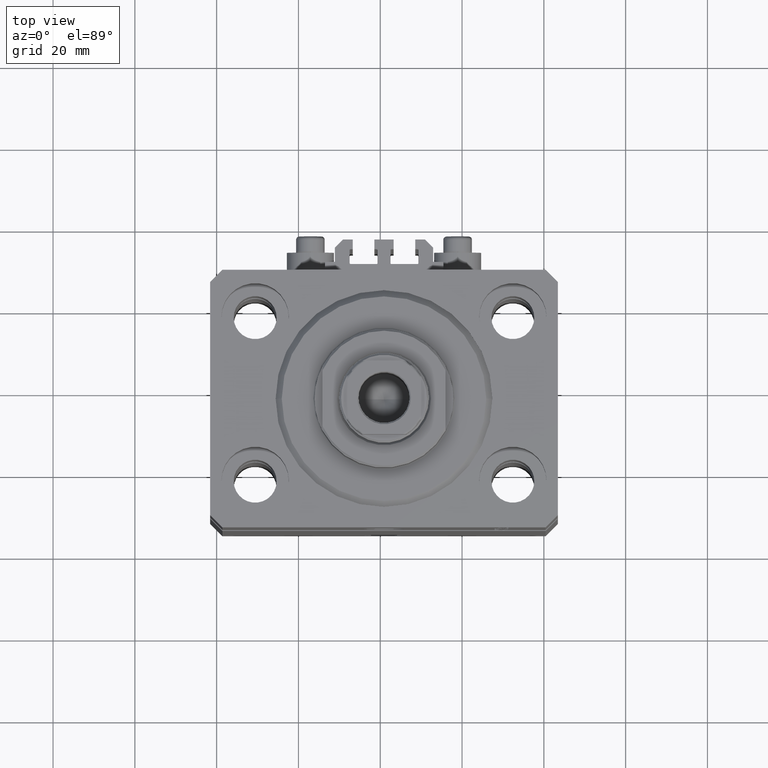
[diagram: clean part render]
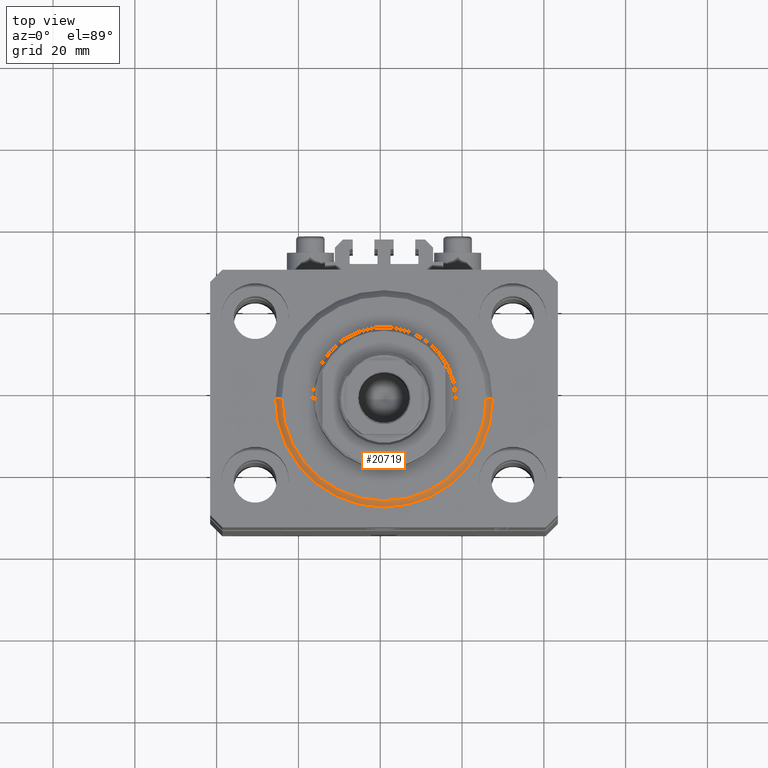
[diagram: same view with one face highlighted and labeled with its STEP entity id]
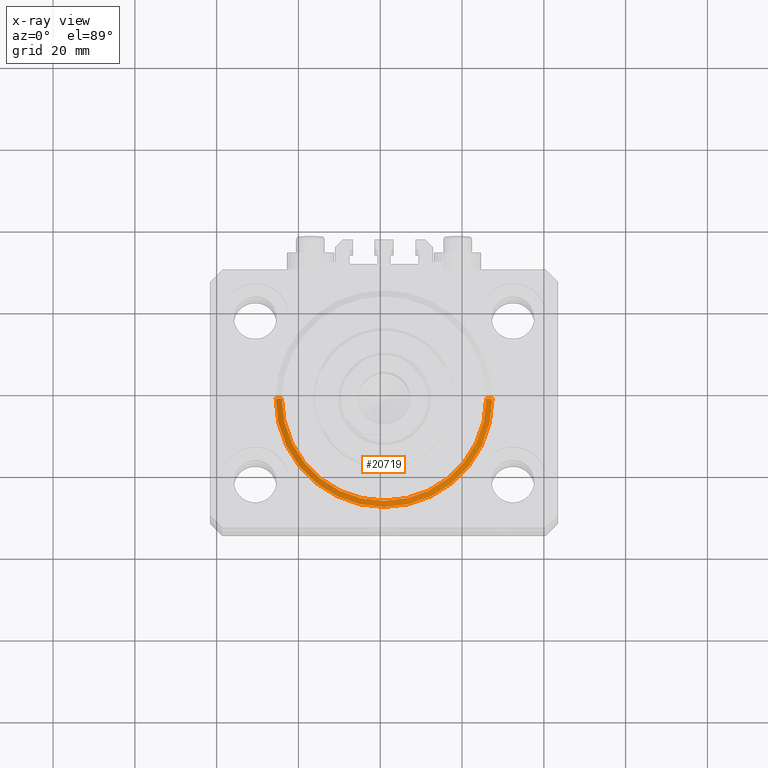
[diagram: x-ray of the same camera — body ghosted, the highlighted face saturated]
A machine part, top view. The second image highlights one B-rep face of the part: STEP entity #20719.
The next image is the same camera in x-ray: the body ghosted, the highlighted face saturated — about 0% of this face is hidden behind the body in this view.
In plain terms, the highlighted conical surface has half-angle 45 deg.
Its self-contained STEP definition (entity closure, byte-faithful):
#2080 = EDGE_CURVE ( 'NONE', #45519, #2197, #12496, .T. ) ;
#2197 = VERTEX_POINT ( 'NONE', #36111 ) ;
#2914 = DIRECTION ( 'NONE',  ( 1.000000000000000000, 0.000000000000000000, 0.000000000000000000 ) ) ;
#3144 = EDGE_LOOP ( 'NONE', ( #40403, #42891, #47349, #12711 ) ) ;
#3171 = VECTOR ( 'NONE', #45169, 1000.000000000000000 ) ;
#3200 = AXIS2_PLACEMENT_3D ( 'NONE', #6222, #35582, #17295 ) ;
#5985 = FACE_OUTER_BOUND ( 'NONE', #3144, .T. ) ;
#6222 = CARTESIAN_POINT ( 'NONE',  ( 0.000000000000000000, 0.000000000000000000, 1.500000000000046407 ) ) ;
#7405 = EDGE_CURVE ( 'NONE', #15667, #13560, #31011, .T. ) ;
#8188 = DIRECTION ( 'NONE',  ( -0.7071067811865491270, 8.659560562354952580E-17, 0.7071067811865459074 ) ) ;
#10697 = DIRECTION ( 'NONE',  ( 1.000000000000000000, 0.000000000000000000, 0.000000000000000000 ) ) ;
#12496 = CIRCLE ( 'NONE', #20190, 24.99999999999995026 ) ;
#12711 = ORIENTED_EDGE ( 'NONE', *, *, #7405, .F. ) ;
#13560 = VERTEX_POINT ( 'NONE', #40832 ) ;
#13606 = CARTESIAN_POINT ( 'NONE',  ( 0.000000000000000000, 0.000000000000000000, 1.500000000000046407 ) ) ;
#15496 = CONICAL_SURFACE ( 'NONE', #3200, 26.50000000000000355, 0.7853981633974506105 ) ;
#15667 = VERTEX_POINT ( 'NONE', #43108 ) ;
#16824 = EDGE_CURVE ( 'NONE', #45519, #13560, #20383, .T. ) ;
#17295 = DIRECTION ( 'NONE',  ( 1.000000000000000000, 0.000000000000000000, 0.000000000000000000 ) ) ;
#19430 = CARTESIAN_POINT ( 'NONE',  ( 26.50000000000000355, 0.000000000000000000, 1.500000000000046407 ) ) ;
#20190 = AXIS2_PLACEMENT_3D ( 'NONE', #46702, #20966, #2914 ) ;
#20383 = LINE ( 'NONE', #19430, #3171 ) ;
#20719 = ADVANCED_FACE ( 'NONE', ( #5985 ), #15496, .T. ) ;
#20966 = DIRECTION ( 'NONE',  ( -0.000000000000000000, -0.000000000000000000, -1.000000000000000000 ) ) ;
#21528 = DIRECTION ( 'NONE',  ( -0.000000000000000000, -0.000000000000000000, 1.000000000000000000 ) ) ;
#24095 = AXIS2_PLACEMENT_3D ( 'NONE', #13606, #21528, #10697 ) ;
#26204 = EDGE_CURVE ( 'NONE', #2197, #15667, #26236, .T. ) ;
#26236 = LINE ( 'NONE', #44527, #40242 ) ;
#31011 = CIRCLE ( 'NONE', #24095, 26.50000000000000355 ) ;
#35582 = DIRECTION ( 'NONE',  ( -0.000000000000000000, -0.000000000000000000, 1.000000000000000000 ) ) ;
#36111 = CARTESIAN_POINT ( 'NONE',  ( -24.99999999999995026, 3.153465507804431248E-15, 0.000000000000000000 ) ) ;
#40236 = CARTESIAN_POINT ( 'NONE',  ( 24.99999999999995026, 0.000000000000000000, 0.000000000000000000 ) ) ;
#40242 = VECTOR ( 'NONE', #8188, 1000.000000000000000 ) ;
#40403 = ORIENTED_EDGE ( 'NONE', *, *, #26204, .F. ) ;
#40832 = CARTESIAN_POINT ( 'NONE',  ( 26.50000000000000355, 3.245314017740485765E-15, 1.500000000000046407 ) ) ;
#42891 = ORIENTED_EDGE ( 'NONE', *, *, #2080, .F. ) ;
#43108 = CARTESIAN_POINT ( 'NONE',  ( -26.50000000000000355, 0.000000000000000000, 1.500000000000046407 ) ) ;
#44527 = CARTESIAN_POINT ( 'NONE',  ( -26.50000000000000355, 3.245314017740486554E-15, 1.500000000000046407 ) ) ;
#45169 = DIRECTION ( 'NONE',  ( 0.7071067811865491270, 0.000000000000000000, 0.7071067811865459074 ) ) ;
#45519 = VERTEX_POINT ( 'NONE', #40236 ) ;
#46702 = CARTESIAN_POINT ( 'NONE',  ( 0.000000000000000000, 0.000000000000000000, 0.000000000000000000 ) ) ;
#47349 = ORIENTED_EDGE ( 'NONE', *, *, #16824, .T. ) ;